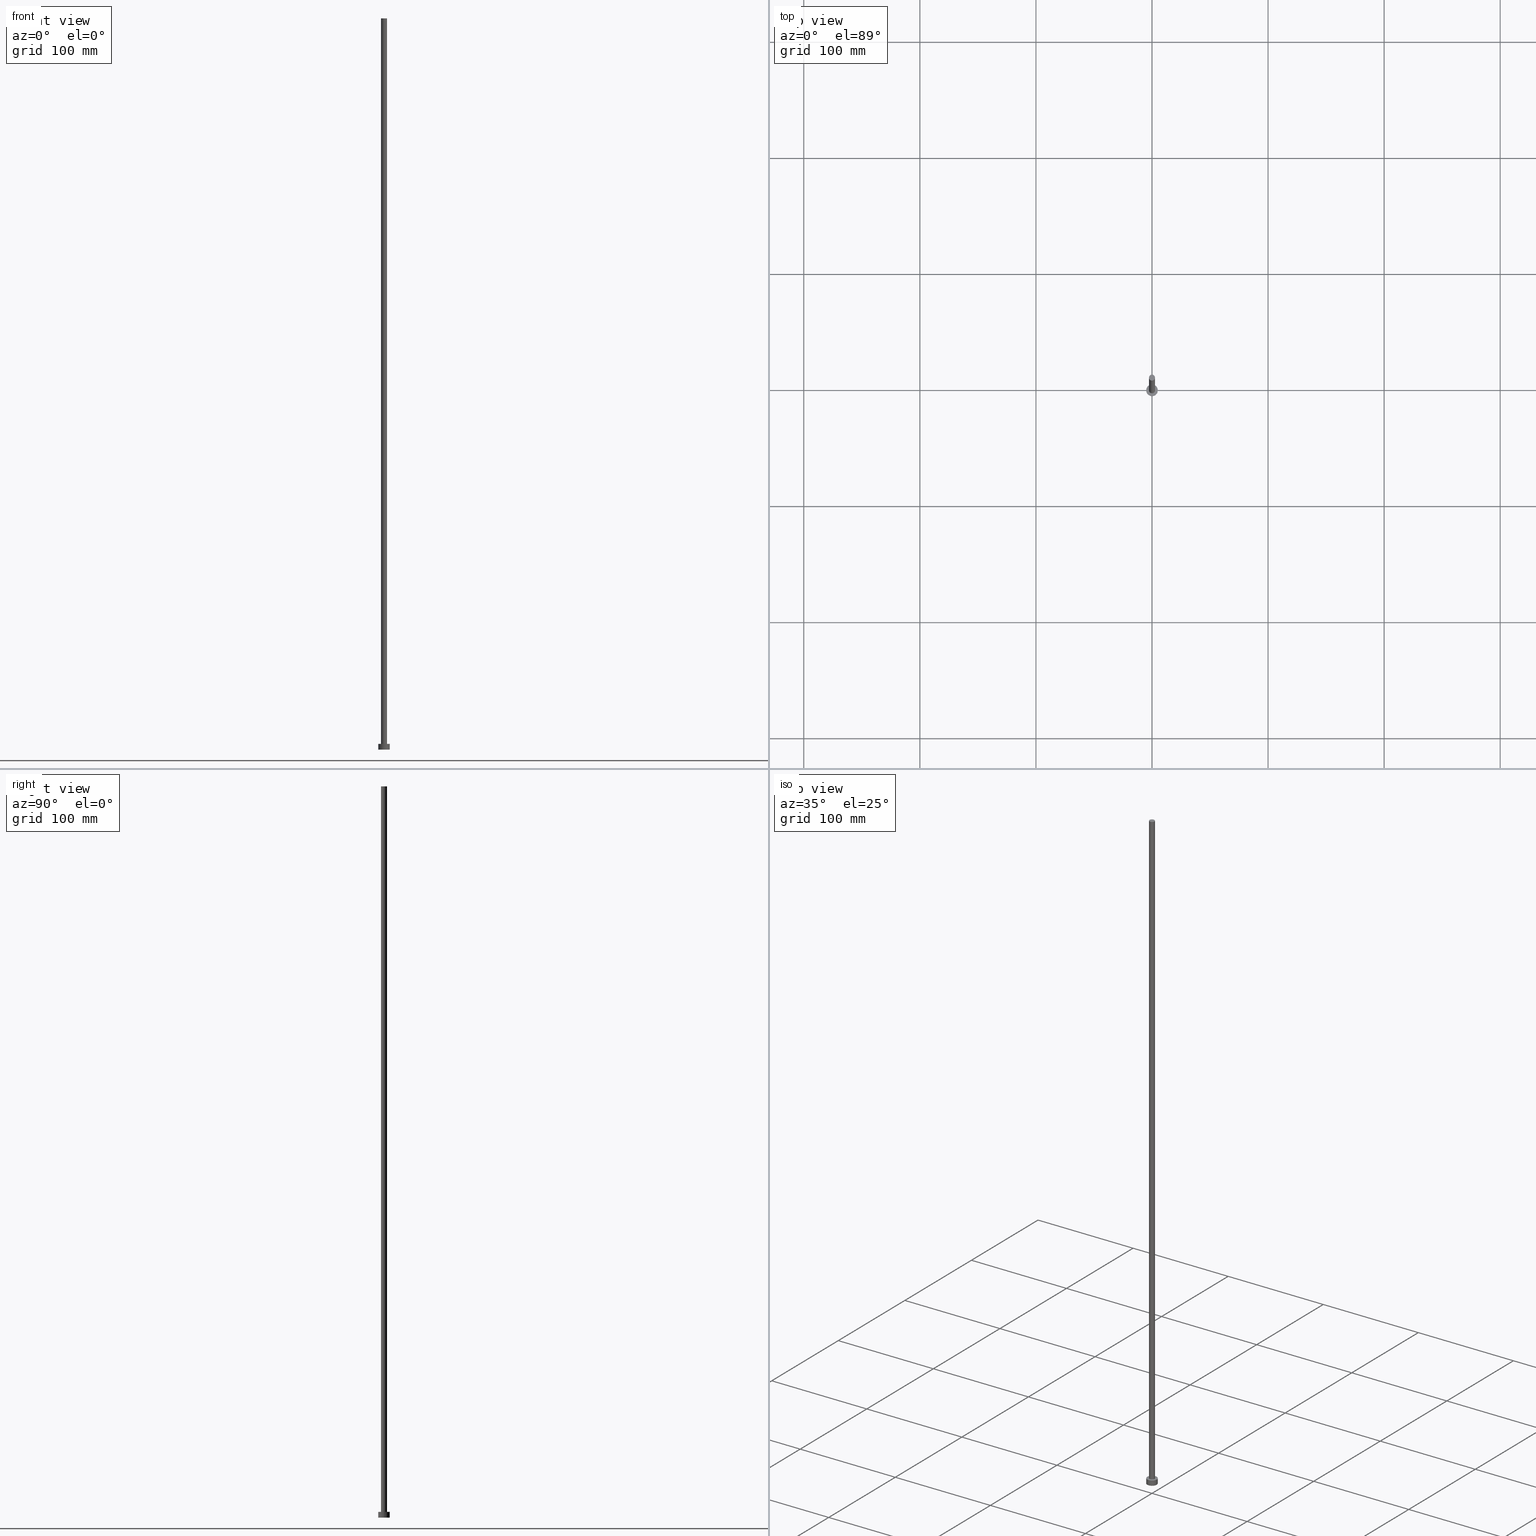
[diagram: canonical four-view strip — front | top / right | iso, engineering-drawing reading convention]
A machine part, canonical four-view strip (front | top / right | iso — engineering-drawing reading convention). The complete STEP part file that produces these views, byte-faithful:
ISO-10303-21;
HEADER;
FILE_DESCRIPTION (( 'STEP AP203' ),
    '1' );
FILE_NAME ('a5e1.STEP',
    '2023-02-13T16:03:01',
    ( '' ),
    ( '' ),
    'SwSTEP 2.0',
    'SolidWorks 2019',
    '' );
FILE_SCHEMA (( 'CONFIG_CONTROL_DESIGN' ));
ENDSEC;

DATA;
#1 = COORDINATED_UNIVERSAL_TIME_OFFSET ( 1, 0, .AHEAD. ) ;
#2 = LINE ( 'NONE', #75, #248 ) ;
#3 = PLANE ( 'NONE',  #237 ) ;
#4 = APPROVAL_PERSON_ORGANIZATION ( #221, #33, #205 ) ;
#5 = CC_DESIGN_DATE_AND_TIME_ASSIGNMENT ( #63, #198, ( #145 ) ) ;
#6 = CARTESIAN_POINT ( 'NONE',  ( 5.000000000000000000, 6.123233995736766282E-16, 5.000000000000000000 ) ) ;
#7 = AXIS2_PLACEMENT_3D ( 'NONE', #233, #158, #32 ) ;
#8 = DIRECTION ( 'NONE',  ( 0.000000000000000000, 0.000000000000000000, 1.000000000000000000 ) ) ;
#9 = EDGE_CURVE ( 'NONE', #26, #154, #227, .T. ) ;
#10 = VERTEX_POINT ( 'NONE', #229 ) ;
#11 = CIRCLE ( 'NONE', #57, 2.600000000000000089 ) ;
#12 = DIRECTION ( 'NONE',  ( -0.000000000000000000, -0.000000000000000000, -1.000000000000000000 ) ) ;
#13 = DIRECTION ( 'NONE',  ( -0.000000000000000000, -0.000000000000000000, -1.000000000000000000 ) ) ;
#14 = PERSON_AND_ORGANIZATION ( #209, #153 ) ;
#15 = CARTESIAN_POINT ( 'NONE',  ( 0.000000000000000000, 0.000000000000000000, 5.000000000000000000 ) ) ;
#16 = VECTOR ( 'NONE', #12, 1000.000000000000000 ) ;
#17 = ORIENTED_EDGE ( 'NONE', *, *, #243, .F. ) ;
#18 = LOCAL_TIME ( 17, 3, 1.000000000000000000, #232 ) ;
#19 = CARTESIAN_POINT ( 'NONE',  ( -5.000000000000000000, 0.000000000000000000, 5.000000000000000000 ) ) ;
#20 = COORDINATED_UNIVERSAL_TIME_OFFSET ( 1, 0, .AHEAD. ) ;
#21 = APPROVAL_STATUS ( 'not_yet_approved' ) ;
#22 = ADVANCED_FACE ( 'NONE', ( #192 ), #231, .T. ) ;
#23 = CARTESIAN_POINT ( 'NONE',  ( 2.600000000000000089, 3.184081677783118191E-16, 630.0000000000000000 ) ) ;
#24 =( GEOMETRIC_REPRESENTATION_CONTEXT ( 3 ) GLOBAL_UNCERTAINTY_ASSIGNED_CONTEXT ( ( #218 ) ) GLOBAL_UNIT_ASSIGNED_CONTEXT ( ( #69, #146, #170 ) ) REPRESENTATION_CONTEXT ( 'NONE', 'WORKASPACE' ) );
#25 = LINE ( 'NONE', #47, #193 ) ;
#26 = VERTEX_POINT ( 'NONE', #139 ) ;
#27 = CARTESIAN_POINT ( 'NONE',  ( 0.000000000000000000, 0.000000000000000000, 0.000000000000000000 ) ) ;
#28 = EDGE_LOOP ( 'NONE', ( #190, #150 ) ) ;
#29 = ORIENTED_EDGE ( 'NONE', *, *, #195, .F. ) ;
#30 = ADVANCED_FACE ( 'NONE', ( #214 ), #197, .T. ) ;
#31 = FACE_OUTER_BOUND ( 'NONE', #174, .T. ) ;
#32 = DIRECTION ( 'NONE',  ( 1.000000000000000000, 0.000000000000000000, 0.000000000000000000 ) ) ;
#33 = APPROVAL ( #234, 'NEUR�EN�' ) ;
#34 = LOCAL_TIME ( 17, 3, 1.000000000000000000, #20 ) ;
#35 = DIRECTION ( 'NONE',  ( -1.000000000000000000, 0.000000000000000000, 0.000000000000000000 ) ) ;
#36 = DIRECTION ( 'NONE',  ( -0.000000000000000000, -0.000000000000000000, -1.000000000000000000 ) ) ;
#37 = DATE_TIME_ROLE ( 'classification_date' ) ;
#38 = EDGE_CURVE ( 'NONE', #217, #213, #157, .T. ) ;
#39 = LINE ( 'NONE', #19, #16 ) ;
#40 = PERSON_AND_ORGANIZATION_ROLE ( 'creator' ) ;
#41 = DIRECTION ( 'NONE',  ( 1.000000000000000000, 0.000000000000000000, -0.000000000000000000 ) ) ;
#42 = APPROVAL_DATE_TIME ( #140, #249 ) ;
#43 = CARTESIAN_POINT ( 'NONE',  ( 0.000000000000000000, 0.000000000000000000, 5.000000000000000000 ) ) ;
#44 = CALENDAR_DATE ( 2023, 13, 2 ) ;
#45 = CIRCLE ( 'NONE', #171, 5.000000000000000000 ) ;
#46 = CIRCLE ( 'NONE', #68, 5.000000000000000000 ) ;
#47 = CARTESIAN_POINT ( 'NONE',  ( -2.600000000000000089, 0.000000000000000000, 630.0000000000000000 ) ) ;
#48 = LOCAL_TIME ( 17, 3, 1.000000000000000000, #148 ) ;
#49 = EDGE_LOOP ( 'NONE', ( #162, #188, #212, #71 ) ) ;
#50 = APPROVAL_PERSON_ORGANIZATION ( #100, #249, #59 ) ;
#51 = DIRECTION ( 'NONE',  ( -0.000000000000000000, -0.000000000000000000, -1.000000000000000000 ) ) ;
#52 = CIRCLE ( 'NONE', #120, 5.000000000000000000 ) ;
#53 = EDGE_LOOP ( 'NONE', ( #134, #211 ) ) ;
#54 = DIRECTION ( 'NONE',  ( 0.000000000000000000, 0.000000000000000000, 1.000000000000000000 ) ) ;
#55 = ORIENTED_EDGE ( 'NONE', *, *, #9, .T. ) ;
#56 = CALENDAR_DATE ( 2023, 13, 2 ) ;
#57 = AXIS2_PLACEMENT_3D ( 'NONE', #43, #108, #236 ) ;
#58 = CARTESIAN_POINT ( 'NONE',  ( 0.000000000000000000, 0.000000000000000000, 630.0000000000000000 ) ) ;
#59 = APPROVAL_ROLE ( '' ) ;
#60 = ORIENTED_EDGE ( 'NONE', *, *, #240, .F. ) ;
#61 = PERSON_AND_ORGANIZATION ( #209, #153 ) ;
#62 = CARTESIAN_POINT ( 'NONE',  ( 0.000000000000000000, 0.000000000000000000, 5.000000000000000000 ) ) ;
#63 = DATE_AND_TIME ( #168, #18 ) ;
#64 = AXIS2_PLACEMENT_3D ( 'NONE', #27, #110, #196 ) ;
#65 = SECURITY_CLASSIFICATION_LEVEL ( 'unclassified' ) ;
#66 = APPLICATION_CONTEXT ( 'configuration controlled 3d designs of mechanical parts and assemblies' ) ;
#67 = EDGE_LOOP ( 'NONE', ( #176, #107, #55, #247 ) ) ;
#68 = AXIS2_PLACEMENT_3D ( 'NONE', #226, #54, #78 ) ;
#69 =( LENGTH_UNIT ( ) NAMED_UNIT ( * ) SI_UNIT ( .MILLI., .METRE. ) );
#70 = AXIS2_PLACEMENT_3D ( 'NONE', #185, #95, #141 ) ;
#71 = ORIENTED_EDGE ( 'NONE', *, *, #86, .F. ) ;
#72 = SECURITY_CLASSIFICATION ( '', '', #65 ) ;
#73 = PERSON_AND_ORGANIZATION_ROLE ( 'design_owner' ) ;
#74 = DIRECTION ( 'NONE',  ( -0.000000000000000000, -0.000000000000000000, -1.000000000000000000 ) ) ;
#75 = CARTESIAN_POINT ( 'NONE',  ( 2.600000000000000089, 3.184081677783118191E-16, 630.0000000000000000 ) ) ;
#76 = AXIS2_PLACEMENT_3D ( 'NONE', #58, #160, #118 ) ;
#77 = PERSON_AND_ORGANIZATION ( #209, #153 ) ;
#78 = DIRECTION ( 'NONE',  ( 1.000000000000000000, 0.000000000000000000, 0.000000000000000000 ) ) ;
#79 = AXIS2_PLACEMENT_3D ( 'NONE', #101, #255, #250 ) ;
#80 = PLANE ( 'NONE',  #116 ) ;
#81 = DIRECTION ( 'NONE',  ( 0.000000000000000000, 0.000000000000000000, 1.000000000000000000 ) ) ;
#82 = APPROVAL_ROLE ( '' ) ;
#83 = CARTESIAN_POINT ( 'NONE',  ( 0.000000000000000000, 0.000000000000000000, 630.0000000000000000 ) ) ;
#84 = APPROVAL_PERSON_ORGANIZATION ( #77, #254, #82 ) ;
#85 = APPLICATION_PROTOCOL_DEFINITION ( 'international standard', 'config_control_design', 1994, #66 ) ;
#86 = EDGE_CURVE ( 'NONE', #175, #10, #39, .T. ) ;
#87 = AXIS2_PLACEMENT_3D ( 'NONE', #83, #8, #206 ) ;
#88 = DIRECTION ( 'NONE',  ( -0.000000000000000000, -0.000000000000000000, -1.000000000000000000 ) ) ;
#89 = CLOSED_SHELL ( 'NONE', ( #113, #22, #151, #177, #105, #30, #149 ) ) ;
#90 = ORIENTED_EDGE ( 'NONE', *, *, #131, .T. ) ;
#91 = EDGE_CURVE ( 'NONE', #246, #10, #45, .T. ) ;
#92 = CARTESIAN_POINT ( 'NONE',  ( 5.000000000000000000, 6.123233995736766282E-16, 0.000000000000000000 ) ) ;
#93 = EDGE_LOOP ( 'NONE', ( #216, #119, #173, #114 ) ) ;
#94 = MECHANICAL_CONTEXT ( 'NONE', #66, 'mechanical' ) ;
#95 = DIRECTION ( 'NONE',  ( 0.000000000000000000, 0.000000000000000000, 1.000000000000000000 ) ) ;
#96 = PRODUCT_DEFINITION_FORMATION_WITH_SPECIFIED_SOURCE ( 'LIBOVOLN�', '', #166, .NOT_KNOWN. ) ;
#97 = FACE_OUTER_BOUND ( 'NONE', #53, .T. ) ;
#98 = EDGE_CURVE ( 'NONE', #109, #175, #52, .T. ) ;
#99 = DIRECTION ( 'NONE',  ( 0.000000000000000000, 0.000000000000000000, 1.000000000000000000 ) ) ;
#100 = PERSON_AND_ORGANIZATION ( #209, #153 ) ;
#101 = CARTESIAN_POINT ( 'NONE',  ( 0.000000000000000000, 0.000000000000000000, 630.0000000000000000 ) ) ;
#102 = CC_DESIGN_APPROVAL ( #33, ( #145 ) ) ;
#103 = APPROVAL_DATE_TIME ( #252, #33 ) ;
#104 = DIRECTION ( 'NONE',  ( 1.000000000000000000, 0.000000000000000000, 0.000000000000000000 ) ) ;
#105 = ADVANCED_FACE ( 'NONE', ( #97 ), #181, .F. ) ;
#106 = CC_DESIGN_PERSON_AND_ORGANIZATION_ASSIGNMENT ( #184, #40, ( #145 ) ) ;
#107 = ORIENTED_EDGE ( 'NONE', *, *, #137, .T. ) ;
#108 = DIRECTION ( 'NONE',  ( 0.000000000000000000, 0.000000000000000000, 1.000000000000000000 ) ) ;
#109 = VERTEX_POINT ( 'NONE', #253 ) ;
#110 = DIRECTION ( 'NONE',  ( 0.000000000000000000, 0.000000000000000000, 1.000000000000000000 ) ) ;
#111 = ORIENTED_EDGE ( 'NONE', *, *, #86, .T. ) ;
#112 = ADVANCED_BREP_SHAPE_REPRESENTATION ( 'a5e1', ( #210, #64 ), #24 ) ;
#113 = ADVANCED_FACE ( 'NONE', ( #178 ), #219, .T. ) ;
#114 = ORIENTED_EDGE ( 'NONE', *, *, #240, .T. ) ;
#115 = CARTESIAN_POINT ( 'NONE',  ( 0.000000000000000000, 0.000000000000000000, 5.000000000000000000 ) ) ;
#116 = AXIS2_PLACEMENT_3D ( 'NONE', #164, #81, #136 ) ;
#117 = CARTESIAN_POINT ( 'NONE',  ( 0.000000000000000000, 0.000000000000000000, 0.000000000000000000 ) ) ;
#118 = DIRECTION ( 'NONE',  ( 1.000000000000000000, 0.000000000000000000, 0.000000000000000000 ) ) ;
#119 = ORIENTED_EDGE ( 'NONE', *, *, #38, .F. ) ;
#120 = AXIS2_PLACEMENT_3D ( 'NONE', #15, #99, #143 ) ;
#121 = PRODUCT_RELATED_PRODUCT_CATEGORY ( 'detail', '', ( #166 ) ) ;
#122 = EDGE_LOOP ( 'NONE', ( #245, #152 ) ) ;
#123 = LINE ( 'NONE', #6, #225 ) ;
#124 = PERSON_AND_ORGANIZATION_ROLE ( 'classification_officer' ) ;
#125 = CC_DESIGN_PERSON_AND_ORGANIZATION_ASSIGNMENT ( #61, #124, ( #72 ) ) ;
#126 = DIRECTION ( 'NONE',  ( 1.000000000000000000, 0.000000000000000000, 0.000000000000000000 ) ) ;
#127 = APPLICATION_CONTEXT ( 'configuration controlled 3d designs of mechanical parts and assemblies' ) ;
#128 = FACE_BOUND ( 'NONE', #132, .T. ) ;
#129 = CC_DESIGN_PERSON_AND_ORGANIZATION_ASSIGNMENT ( #147, #230, ( #96 ) ) ;
#130 = CIRCLE ( 'NONE', #183, 5.000000000000000000 ) ;
#131 = EDGE_CURVE ( 'NONE', #10, #246, #46, .T. ) ;
#132 = EDGE_LOOP ( 'NONE', ( #60, #156 ) ) ;
#133 = CARTESIAN_POINT ( 'NONE',  ( -5.000000000000000000, 0.000000000000000000, 5.000000000000000000 ) ) ;
#134 = ORIENTED_EDGE ( 'NONE', *, *, #131, .F. ) ;
#135 = CIRCLE ( 'NONE', #87, 2.600000000000000089 ) ;
#136 = DIRECTION ( 'NONE',  ( 1.000000000000000000, 0.000000000000000000, -0.000000000000000000 ) ) ;
#137 = EDGE_CURVE ( 'NONE', #213, #26, #2, .T. ) ;
#138 = DIRECTION ( 'NONE',  ( -1.000000000000000000, 0.000000000000000000, 0.000000000000000000 ) ) ;
#139 = CARTESIAN_POINT ( 'NONE',  ( 2.600000000000000089, 3.184081677783118191E-16, 5.000000000000000000 ) ) ;
#140 = DATE_AND_TIME ( #142, #207 ) ;
#141 = DIRECTION ( 'NONE',  ( 1.000000000000000000, 0.000000000000000000, -0.000000000000000000 ) ) ;
#142 = CALENDAR_DATE ( 2023, 13, 2 ) ;
#143 = DIRECTION ( 'NONE',  ( 1.000000000000000000, 0.000000000000000000, 0.000000000000000000 ) ) ;
#144 = CALENDAR_DATE ( 2023, 13, 2 ) ;
#145 = PRODUCT_DEFINITION ( 'NEZN�M�', '', #96, #224 ) ;
#146 =( NAMED_UNIT ( * ) PLANE_ANGLE_UNIT ( ) SI_UNIT ( $, .RADIAN. ) );
#147 = PERSON_AND_ORGANIZATION ( #209, #153 ) ;
#148 = COORDINATED_UNIVERSAL_TIME_OFFSET ( 1, 0, .AHEAD. ) ;
#149 = ADVANCED_FACE ( 'NONE', ( #199 ), #80, .T. ) ;
#150 = ORIENTED_EDGE ( 'NONE', *, *, #189, .T. ) ;
#151 = ADVANCED_FACE ( 'NONE', ( #31 ), #194, .T. ) ;
#152 = ORIENTED_EDGE ( 'NONE', *, *, #98, .T. ) ;
#153 = ORGANIZATION ( 'NEUR�EN�', 'NEUR�EN�', '' ) ;
#154 = VERTEX_POINT ( 'NONE', #215 ) ;
#155 = APPLICATION_PROTOCOL_DEFINITION ( 'international standard', 'config_control_design', 1994, #127 ) ;
#156 = ORIENTED_EDGE ( 'NONE', *, *, #9, .F. ) ;
#157 = CIRCLE ( 'NONE', #76, 2.600000000000000089 ) ;
#158 = DIRECTION ( 'NONE',  ( 0.000000000000000000, 0.000000000000000000, 1.000000000000000000 ) ) ;
#159 = SHAPE_DEFINITION_REPRESENTATION ( #242, #112 ) ;
#160 = DIRECTION ( 'NONE',  ( 0.000000000000000000, 0.000000000000000000, 1.000000000000000000 ) ) ;
#161 = CC_DESIGN_APPROVAL ( #254, ( #72 ) ) ;
#162 = ORIENTED_EDGE ( 'NONE', *, *, #98, .F. ) ;
#163 = PERSON_AND_ORGANIZATION ( #209, #153 ) ;
#164 = CARTESIAN_POINT ( 'NONE',  ( 0.000000000000000000, 0.000000000000000000, 630.0000000000000000 ) ) ;
#165 = COORDINATED_UNIVERSAL_TIME_OFFSET ( 1, 0, .AHEAD. ) ;
#166 = PRODUCT ( 'a5e1', 'a5e1', '', ( #94 ) ) ;
#167 = CARTESIAN_POINT ( 'NONE',  ( 0.000000000000000000, 0.000000000000000000, 5.000000000000000000 ) ) ;
#168 = CALENDAR_DATE ( 2023, 13, 2 ) ;
#169 = EDGE_CURVE ( 'NONE', #217, #154, #25, .T. ) ;
#170 =( NAMED_UNIT ( * ) SI_UNIT ( $, .STERADIAN. ) SOLID_ANGLE_UNIT ( ) );
#171 = AXIS2_PLACEMENT_3D ( 'NONE', #117, #251, #104 ) ;
#172 = CC_DESIGN_APPROVAL ( #249, ( #96 ) ) ;
#173 = ORIENTED_EDGE ( 'NONE', *, *, #169, .T. ) ;
#174 = EDGE_LOOP ( 'NONE', ( #17, #29, #111, #90 ) ) ;
#175 = VERTEX_POINT ( 'NONE', #133 ) ;
#176 = ORIENTED_EDGE ( 'NONE', *, *, #189, .F. ) ;
#177 = ADVANCED_FACE ( 'NONE', ( #128, #204 ), #3, .T. ) ;
#178 = FACE_OUTER_BOUND ( 'NONE', #67, .T. ) ;
#179 = DIRECTION ( 'NONE',  ( -0.000000000000000000, -0.000000000000000000, -1.000000000000000000 ) ) ;
#180 = CC_DESIGN_PERSON_AND_ORGANIZATION_ASSIGNMENT ( #163, #202, ( #96 ) ) ;
#181 = PLANE ( 'NONE',  #70 ) ;
#182 = DIRECTION ( 'NONE',  ( -1.000000000000000000, 0.000000000000000000, 0.000000000000000000 ) ) ;
#183 = AXIS2_PLACEMENT_3D ( 'NONE', #167, #241, #126 ) ;
#184 = PERSON_AND_ORGANIZATION ( #209, #153 ) ;
#185 = CARTESIAN_POINT ( 'NONE',  ( 0.000000000000000000, 0.000000000000000000, 0.000000000000000000 ) ) ;
#186 = AXIS2_PLACEMENT_3D ( 'NONE', #201, #179, #182 ) ;
#187 = AXIS2_PLACEMENT_3D ( 'NONE', #115, #74, #138 ) ;
#188 = ORIENTED_EDGE ( 'NONE', *, *, #243, .T. ) ;
#189 = EDGE_CURVE ( 'NONE', #213, #217, #135, .T. ) ;
#190 = ORIENTED_EDGE ( 'NONE', *, *, #38, .T. ) ;
#191 = LOCAL_TIME ( 17, 3, 1.000000000000000000, #165 ) ;
#192 = FACE_OUTER_BOUND ( 'NONE', #49, .T. ) ;
#193 = VECTOR ( 'NONE', #88, 1000.000000000000000 ) ;
#194 = CYLINDRICAL_SURFACE ( 'NONE', #187, 5.000000000000000000 ) ;
#195 = EDGE_CURVE ( 'NONE', #175, #109, #130, .T. ) ;
#196 = DIRECTION ( 'NONE',  ( 1.000000000000000000, 0.000000000000000000, 0.000000000000000000 ) ) ;
#197 = CYLINDRICAL_SURFACE ( 'NONE', #223, 2.600000000000000089 ) ;
#198 = DATE_TIME_ROLE ( 'creation_date' ) ;
#199 = FACE_OUTER_BOUND ( 'NONE', #28, .T. ) ;
#200 = APPROVAL_STATUS ( 'not_yet_approved' ) ;
#201 = CARTESIAN_POINT ( 'NONE',  ( 0.000000000000000000, 0.000000000000000000, 5.000000000000000000 ) ) ;
#202 = PERSON_AND_ORGANIZATION_ROLE ( 'creator' ) ;
#203 = APPROVAL_DATE_TIME ( #238, #254 ) ;
#204 = FACE_OUTER_BOUND ( 'NONE', #122, .T. ) ;
#205 = APPROVAL_ROLE ( '' ) ;
#206 = DIRECTION ( 'NONE',  ( 1.000000000000000000, 0.000000000000000000, 0.000000000000000000 ) ) ;
#207 = LOCAL_TIME ( 17, 3, 1.000000000000000000, #1 ) ;
#208 = CARTESIAN_POINT ( 'NONE',  ( -2.600000000000000089, 0.000000000000000000, 630.0000000000000000 ) ) ;
#209 = PERSON ( 'NEUR�EN�', 'NEUR�EN�', 'NEUR�EN�', ('NEUR�EN�'), ('NEUR�EN�'), ('NEUR�EN�') ) ;
#210 = MANIFOLD_SOLID_BREP ( 'P�idat vysunut�m3', #89 ) ;
#211 = ORIENTED_EDGE ( 'NONE', *, *, #91, .F. ) ;
#212 = ORIENTED_EDGE ( 'NONE', *, *, #91, .T. ) ;
#213 = VERTEX_POINT ( 'NONE', #23 ) ;
#214 = FACE_OUTER_BOUND ( 'NONE', #93, .T. ) ;
#215 = CARTESIAN_POINT ( 'NONE',  ( -2.600000000000000089, 0.000000000000000000, 5.000000000000000000 ) ) ;
#216 = ORIENTED_EDGE ( 'NONE', *, *, #137, .F. ) ;
#217 = VERTEX_POINT ( 'NONE', #208 ) ;
#218 = UNCERTAINTY_MEASURE_WITH_UNIT (LENGTH_MEASURE( 1.000000000000000082E-05 ), #69, 'distance_accuracy_value', 'NONE');
#219 = CYLINDRICAL_SURFACE ( 'NONE', #79, 2.600000000000000089 ) ;
#220 = CC_DESIGN_SECURITY_CLASSIFICATION ( #72, ( #96 ) ) ;
#221 = PERSON_AND_ORGANIZATION ( #209, #153 ) ;
#222 = DATE_AND_TIME ( #144, #34 ) ;
#223 = AXIS2_PLACEMENT_3D ( 'NONE', #228, #13, #35 ) ;
#224 = DESIGN_CONTEXT ( 'detailed design', #127, 'design' ) ;
#225 = VECTOR ( 'NONE', #51, 1000.000000000000000 ) ;
#226 = CARTESIAN_POINT ( 'NONE',  ( 0.000000000000000000, 0.000000000000000000, 0.000000000000000000 ) ) ;
#227 = CIRCLE ( 'NONE', #7, 2.600000000000000089 ) ;
#228 = CARTESIAN_POINT ( 'NONE',  ( 0.000000000000000000, 0.000000000000000000, 630.0000000000000000 ) ) ;
#229 = CARTESIAN_POINT ( 'NONE',  ( -5.000000000000000000, 0.000000000000000000, 0.000000000000000000 ) ) ;
#230 = PERSON_AND_ORGANIZATION_ROLE ( 'design_supplier' ) ;
#231 = CYLINDRICAL_SURFACE ( 'NONE', #186, 5.000000000000000000 ) ;
#232 = COORDINATED_UNIVERSAL_TIME_OFFSET ( 1, 0, .AHEAD. ) ;
#233 = CARTESIAN_POINT ( 'NONE',  ( 0.000000000000000000, 0.000000000000000000, 5.000000000000000000 ) ) ;
#234 = APPROVAL_STATUS ( 'not_yet_approved' ) ;
#235 = CC_DESIGN_PERSON_AND_ORGANIZATION_ASSIGNMENT ( #14, #73, ( #166 ) ) ;
#236 = DIRECTION ( 'NONE',  ( 1.000000000000000000, 0.000000000000000000, 0.000000000000000000 ) ) ;
#237 = AXIS2_PLACEMENT_3D ( 'NONE', #62, #244, #41 ) ;
#238 = DATE_AND_TIME ( #44, #191 ) ;
#239 = CC_DESIGN_DATE_AND_TIME_ASSIGNMENT ( #222, #37, ( #72 ) ) ;
#240 = EDGE_CURVE ( 'NONE', #154, #26, #11, .T. ) ;
#241 = DIRECTION ( 'NONE',  ( 0.000000000000000000, 0.000000000000000000, 1.000000000000000000 ) ) ;
#242 = PRODUCT_DEFINITION_SHAPE ( 'NONE', 'NONE',  #145 ) ;
#243 = EDGE_CURVE ( 'NONE', #109, #246, #123, .T. ) ;
#244 = DIRECTION ( 'NONE',  ( 0.000000000000000000, 0.000000000000000000, 1.000000000000000000 ) ) ;
#245 = ORIENTED_EDGE ( 'NONE', *, *, #195, .T. ) ;
#246 = VERTEX_POINT ( 'NONE', #92 ) ;
#247 = ORIENTED_EDGE ( 'NONE', *, *, #169, .F. ) ;
#248 = VECTOR ( 'NONE', #36, 1000.000000000000000 ) ;
#249 = APPROVAL ( #200, 'NEUR�EN�' ) ;
#250 = DIRECTION ( 'NONE',  ( -1.000000000000000000, 0.000000000000000000, 0.000000000000000000 ) ) ;
#251 = DIRECTION ( 'NONE',  ( 0.000000000000000000, 0.000000000000000000, 1.000000000000000000 ) ) ;
#252 = DATE_AND_TIME ( #56, #48 ) ;
#253 = CARTESIAN_POINT ( 'NONE',  ( 5.000000000000000000, 6.123233995736766282E-16, 5.000000000000000000 ) ) ;
#254 = APPROVAL ( #21, 'NEUR�EN�' ) ;
#255 = DIRECTION ( 'NONE',  ( -0.000000000000000000, -0.000000000000000000, -1.000000000000000000 ) ) ;
ENDSEC;
END-ISO-10303-21;
